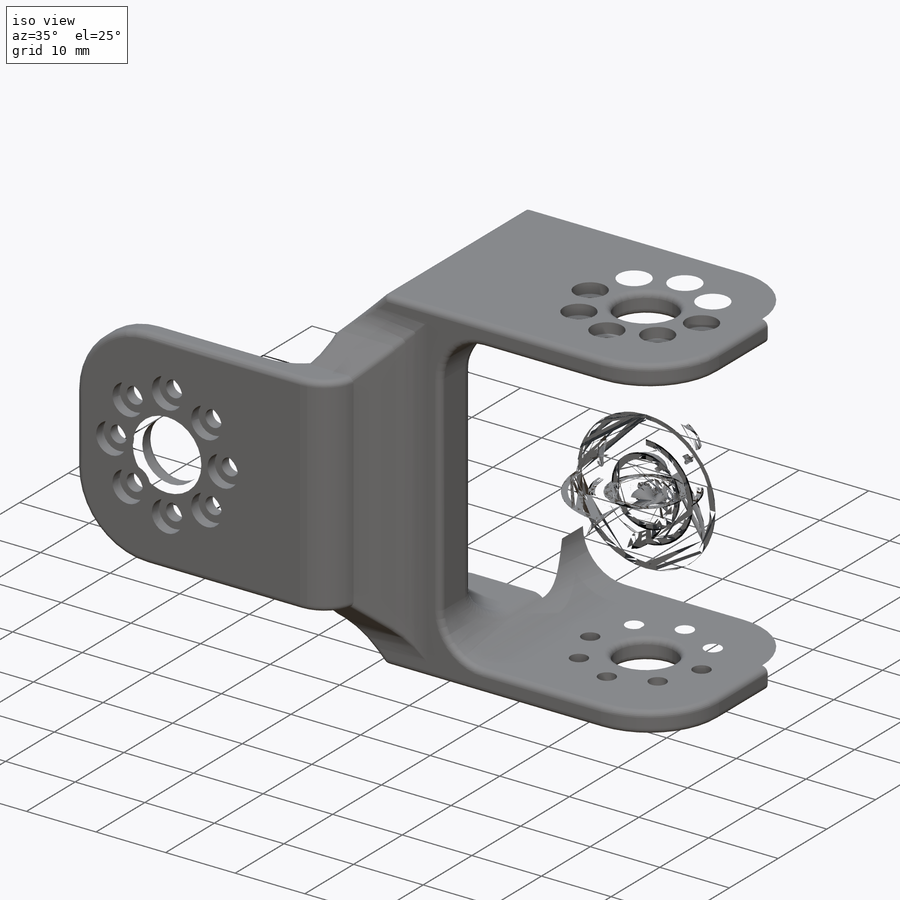
[diagram: iso view]
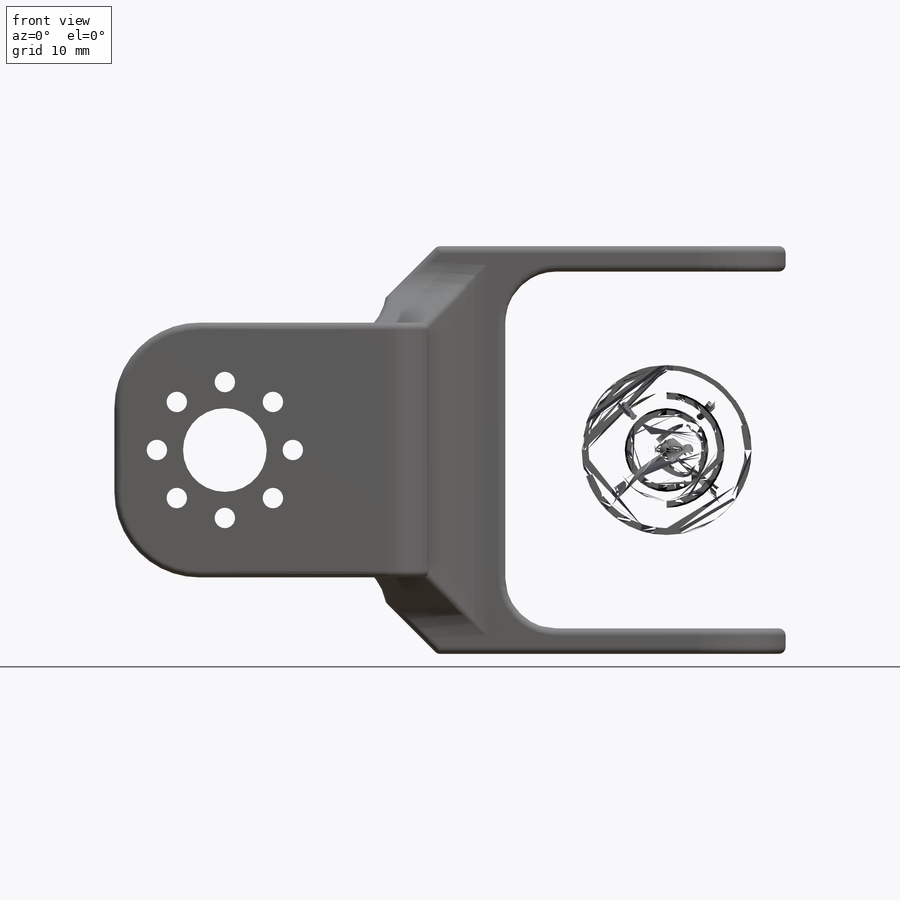
[diagram: front view]
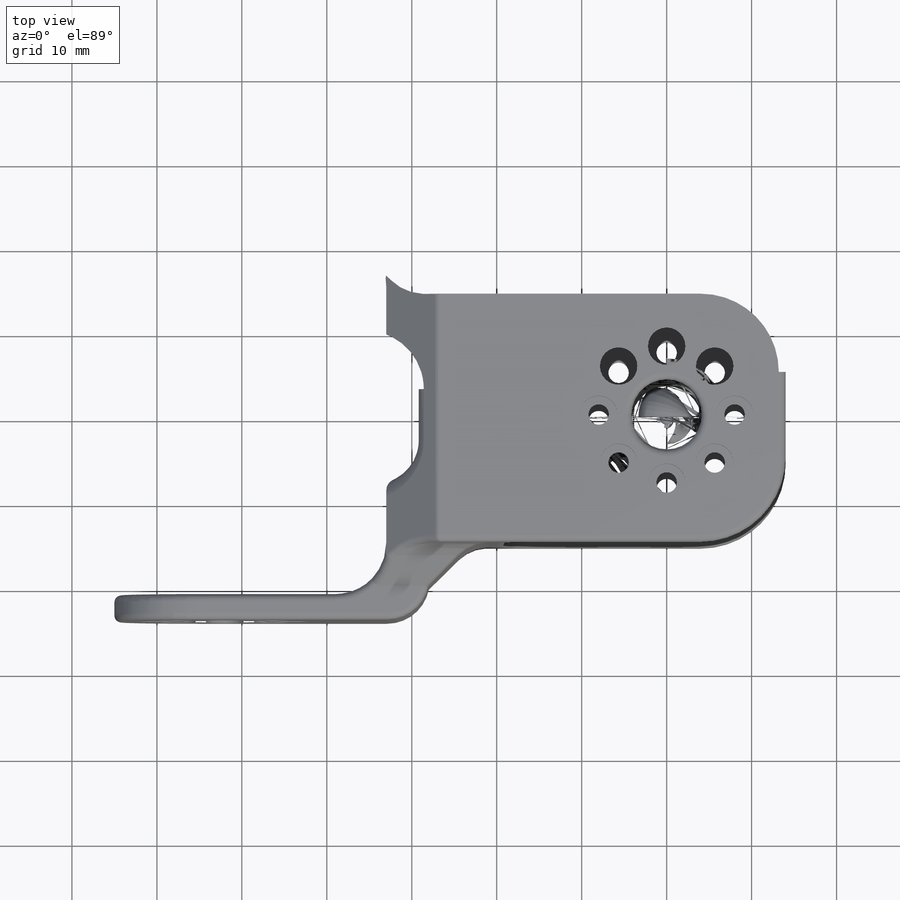
[diagram: top view]
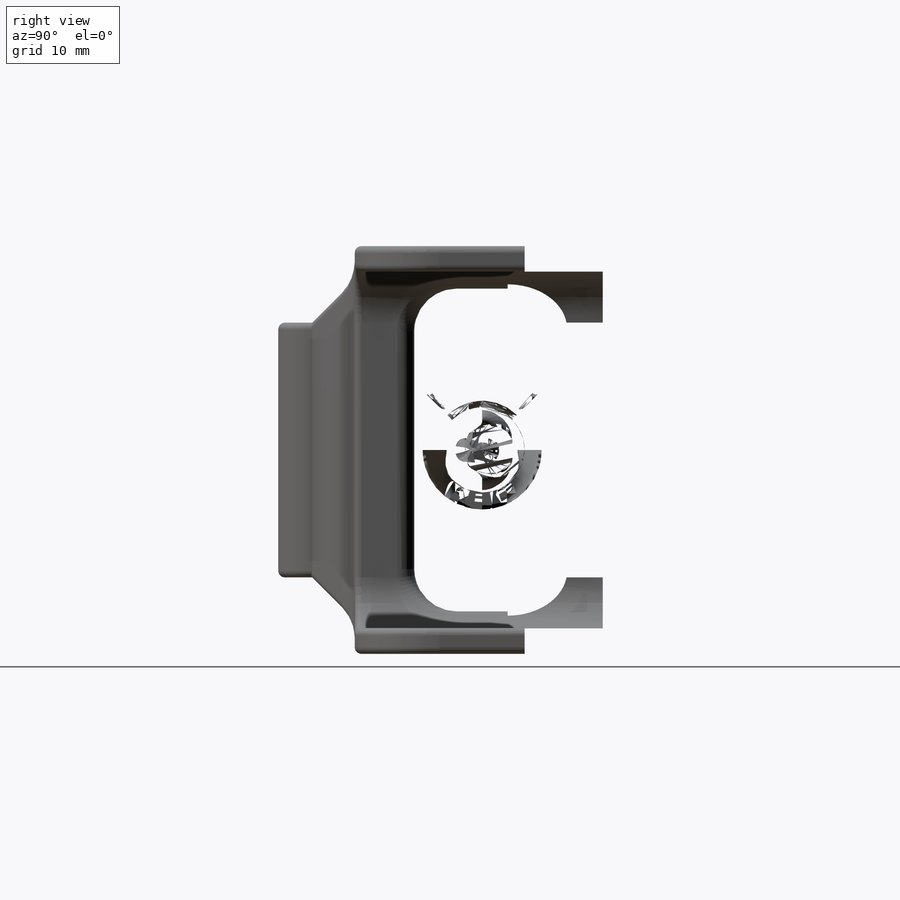
[diagram: right view]
SOLIDWORKS PART (.sldprt)
format: sldprt  version: not decoded by parser v0  size: 2,280,448 bytes
history: native  units: mm
features: sketch x21, fillet x6, cut_extrude x4, hole x4, extrude x3, mirror x3, chamfer x2, material x1 (+14 scaffold rows collapsed; 2 parser-record rows omitted)
feature tree (60):
  scaffold x14  (default folders/planes/origin — collapsed)
  material  "ABS"
  sketch  "Sketch1"  dims[D1=21.0mm]
  sketch  "Sketch2"  dims[D1=21.0mm D2=52.0mm]
  sketch  "Sketch3"  dims[c1.D1=8.0mm c1.D2=16.0mm c1.D3=22.0mm c2.D2=8.0mm c2.D4=~13.045976mm c3.D4=45.0deg]
  sketch  "Sketch4"  dims[c1.D1=8.0mm c1.D2=16.0mm c1.D3=22.0mm c1.D4=~5.578345mm c2.D4=45.0deg]
  sketch  "Sketch5"  dims[D1=19.0mm]
  sketch  "Sketch6"  dims[D1=19.0mm]
  sketch  "Sketch7"  dims[c1.D1=3.0mm c1.D2=21.0mm c2.D1=24.0mm c2.D2=3.0mm c3.D1=47.0mm]
  extrude  "Boss-Extrude1"  Depth=15mm
  sketch  "Sketch8"  dims[D1=6.0mm D2=6.0mm D3=32.0mm]
  extrude  "Boss-Extrude2"  Depth=24mm
  sketch  "Sketch10"  dims[D1=5.0mm]
  extrude  "Boss-Extrude3"  [1 undecoded]
  sketch  "Sketch9"  dims[c1.D1=3.0mm c1.D2=3.0mm c1.D3=3.0mm c2.D1=3.0mm]
  cut_extrude  "Cut-Extrude1"  [1 undecoded]
  chamfer  "Chamfer1"  Distance=5mm Angle=45deg
  chamfer  "Chamfer2"  Distance=6mm Angle=45deg
  fillet  "Fillet1"  Radius=10mm
  sketch  "Sketch11"  dims[D1=8.0mm D2=2.0mm D3=2.0mm]
  cut_extrude  "Cut-Extrude2"  [1 undecoded]
  parser-record x2  (decoder bookkeeping rows leaked as tree rows — omitted from the tree; the rows remain in map.json)
  hole  "CBORE for M2 Hex Socket Head Cap Screw3"  Diameter=2.4mm Depth=24mm
  sketch  "Sketch13"
  sketch  "Sketch12"  dims[hole-wizard template sketch: 42 standard entries collapsed; hole parameters kept: c12.Thru Hole Depth=24.0mm c12.C'Bore Dia.=4.4mm c12.C'Bore Depth=1.5mm]
  hole  "CBORE for M2 Hex Socket Head Cap Screw4"  Diameter=2.4mm Depth=48mm
  sketch  "Sketch15"
  sketch  "Sketch14"  dims[hole-wizard template sketch: 42 standard entries collapsed; hole parameters kept: c12.Thru Hole Depth=48.0mm c12.C'Bore Dia.=4.4mm c12.C'Bore Depth=1.5mm]
  mirror  "Mirror1"
  sketch  "Sketch18"
  cut_extrude  "Cut-Extrude3"  [1 undecoded]
  sketch  "Sketch21"
  cut_extrude  "Cut-Extrude4"  [1 undecoded]
  hole  "CBORE for M2 Hex Socket Head Cap Screw1"  Diameter=2.4mm Depth=48mm
  sketch  "Sketch17"
  sketch  "Sketch16"  dims[hole-wizard template sketch: 42 standard entries collapsed; hole parameters kept: c12.Thru Hole Depth=48.0mm c12.C'Bore Dia.=4.4mm c12.C'Bore Depth=1.5mm]
  hole  "CBORE for M2 Hex Socket Head Cap Screw2"  Diameter=2.4mm Depth=24mm
  sketch  "Sketch20"
  sketch  "Sketch19"  dims[hole-wizard template sketch: 42 standard entries collapsed; hole parameters kept: c12.Thru Hole Depth=24.0mm c12.C'Bore Dia.=4.4mm c12.C'Bore Depth=1.5mm]
  mirror  "Mirror3"
  fillet  "Fillet5"  Radius=6mm
  fillet  "Fillet2"  Radius=5mm
  fillet  "Fillet3"  Radius=2mm
  fillet  "Fillet4"  Radius=0.8mm
  fillet  "Fillet6"  Radius=0.8mm
  mirror  "Mirror2"
decode coverage: 29 of 43 modeling features carry decoded parameters
note: ~ marks probable driven/reference dimensions
note: 5 parameter values undecoded
summary: no parameter record found for 5 features; Diameter pulled from absorbed wizard sketch
note: suppression state not decoded; provenance and decode notes live in map.json
